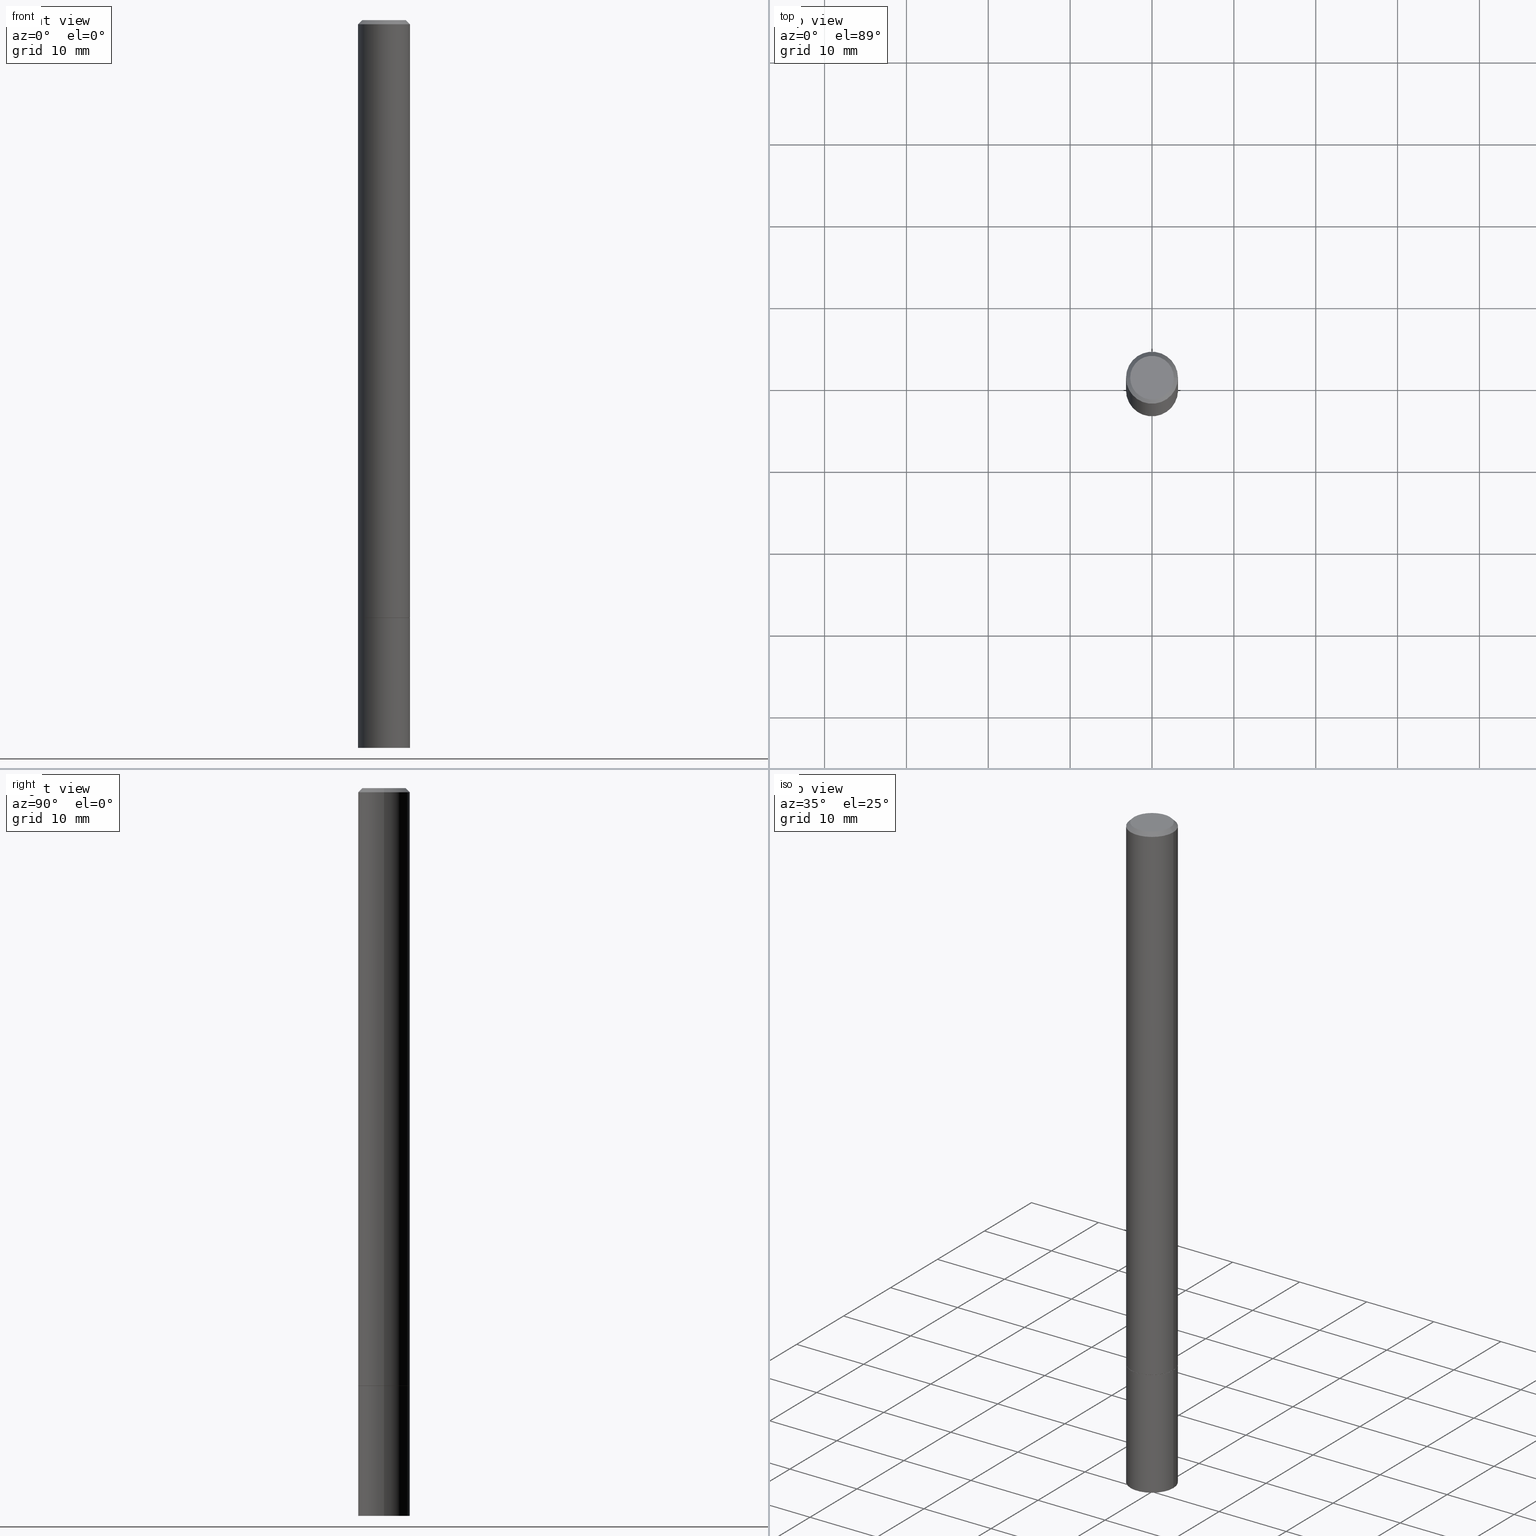
[diagram: canonical four-view strip — front | top / right | iso, engineering-drawing reading convention]
A machine part, canonical four-view strip (front | top / right | iso — engineering-drawing reading convention). The complete STEP part file that produces these views, byte-faithful:
ISO-10303-21;
HEADER;
FILE_DESCRIPTION (( 'STEP AP203' ),
    '1' );
FILE_NAME ('32262.STEP',
    '2024-02-27T14:50:38',
    ( '' ),
    ( '' ),
    'SwSTEP 2.0',
    'SolidWorks 2023',
    '' );
FILE_SCHEMA (( 'CONFIG_CONTROL_DESIGN' ));
ENDSEC;

DATA;
#1 = DATE_AND_TIME ( #25, #88 ) ;
#2 = CARTESIAN_POINT ( 'NONE',  ( 7.030722817782266595E-29, -1.003800884917404153E-14, -2.874999999999999112 ) ) ;
#3 = CARTESIAN_POINT ( 'NONE',  ( 4.890937612370285420E-31, -6.982962677686308865E-17, -0.02000000000000005246 ) ) ;
#4 = VECTOR ( 'NONE', #281, 39.37007874015748143 ) ;
#5 = CC_DESIGN_PERSON_AND_ORGANIZATION_ASSIGNMENT ( #311, #366, ( #341 ) ) ;
#6 = APPROVAL_ROLE ( '' ) ;
#7 = EDGE_LOOP ( 'NONE', ( #133, #213 ) ) ;
#8 = CARTESIAN_POINT ( 'NONE',  ( 0.1250000000000000278, -8.728703347107836346E-16, 6.095220969744921142E-30 ) ) ;
#9 = CARTESIAN_POINT ( 'NONE',  ( 7.030722817782266595E-29, -1.003800884917404153E-14, -2.874999999999999112 ) ) ;
#10 = DIRECTION ( 'NONE',  ( 1.000000000000000000, -6.982962677686269077E-15, 0.000000000000000000 ) ) ;
#11 = SECURITY_CLASSIFICATION_LEVEL ( 'unclassified' ) ;
#12 = VERTEX_POINT ( 'NONE', #41 ) ;
#13 = CC_DESIGN_SECURITY_CLASSIFICATION ( #238, ( #225 ) ) ;
#14 = VERTEX_POINT ( 'NONE', #352 ) ;
#15 = EDGE_CURVE ( 'NONE', #198, #289, #214, .T. ) ;
#16 = DIRECTION ( 'NONE',  ( -2.445468806185136877E-29, 3.491481338843145188E-15, 1.000000000000000000 ) ) ;
#17 = ORIENTED_EDGE ( 'NONE', *, *, #183, .T. ) ;
#18 = DIRECTION ( 'NONE',  ( 2.438088387897960049E-29, -3.491481338843145188E-15, -1.000000000000000000 ) ) ;
#19 = CC_DESIGN_APPROVAL ( #268, ( #140 ) ) ;
#20 = CARTESIAN_POINT ( 'NONE',  ( 7.030722817782267716E-29, -1.003800884917404311E-14, -2.875000000000000000 ) ) ;
#21 = ORIENTED_EDGE ( 'NONE', *, *, #27, .F. ) ;
#22 = CARTESIAN_POINT ( 'NONE',  ( 8.728703347108691274E-16, 0.1249999999999878014, -3.500000000000000444 ) ) ;
#23 = PLANE ( 'NONE',  #83 ) ;
#24 = DIRECTION ( 'NONE',  ( 1.000000000000000000, -6.982962677686261189E-15, 0.000000000000000000 ) ) ;
#25 = CALENDAR_DATE ( 2024, 27, 2 ) ;
#26 = VECTOR ( 'NONE', #73, 39.37007874015748143 ) ;
#27 = EDGE_CURVE ( 'NONE', #14, #37, #55, .T. ) ;
#28 = DATE_AND_TIME ( #222, #292 ) ;
#29 = EDGE_CURVE ( 'NONE', #203, #181, #60, .T. ) ;
#30 = VECTOR ( 'NONE', #335, 39.37007874015748854 ) ;
#31 = CIRCLE ( 'NONE', #340, 0.1250000000000000278 ) ;
#32 = DIRECTION ( 'NONE',  ( -2.445468806185136597E-29, 3.491481338843145583E-15, 1.000000000000000000 ) ) ;
#33 = PERSON_AND_ORGANIZATION ( #228, #334 ) ;
#34 = ADVANCED_BREP_SHAPE_REPRESENTATION ( '32262', ( #255, #365, #38 ), #51 ) ;
#35 = APPROVAL_STATUS ( 'not_yet_approved' ) ;
#36 = AXIS2_PLACEMENT_3D ( 'NONE', #98, #349, #322 ) ;
#37 = VERTEX_POINT ( 'NONE', #90 ) ;
#38 = AXIS2_PLACEMENT_3D ( 'NONE', #245, #50, #285 ) ;
#39 = ORIENTED_EDGE ( 'NONE', *, *, #168, .T. ) ;
#40 = DIRECTION ( 'NONE',  ( -2.445468806185136597E-29, 3.491481338843145583E-15, 1.000000000000000000 ) ) ;
#41 = CARTESIAN_POINT ( 'NONE',  ( 0.1250000000000000278, -1.090738770254598344E-14, -2.874000000000000110 ) ) ;
#42 = ORIENTED_EDGE ( 'NONE', *, *, #318, .T. ) ;
#43 = EDGE_CURVE ( 'NONE', #125, #126, #196, .T. ) ;
#44 = LINE ( 'NONE', #165, #162 ) ;
#45 = LOCAL_TIME ( 9, 50, 38.00000000000000000, #342 ) ;
#46 = ORIENTED_EDGE ( 'NONE', *, *, #318, .F. ) ;
#47 = CARTESIAN_POINT ( 'NONE',  ( 7.030722817782266595E-29, -1.003800884917404153E-14, -2.874999999999999112 ) ) ;
#48 = DIRECTION ( 'NONE',  ( -2.445468806185136597E-29, 3.491481338843145583E-15, 1.000000000000000000 ) ) ;
#49 = ORIENTED_EDGE ( 'NONE', *, *, #239, .F. ) ;
#50 = DIRECTION ( 'NONE',  ( 0.000000000000000000, 0.000000000000000000, 1.000000000000000000 ) ) ;
#51 =( GEOMETRIC_REPRESENTATION_CONTEXT ( 3 ) GLOBAL_UNCERTAINTY_ASSIGNED_CONTEXT ( ( #80 ) ) GLOBAL_UNIT_ASSIGNED_CONTEXT ( ( #347, #344, #286 ) ) REPRESENTATION_CONTEXT ( 'NONE', 'WORKASPACE' ) );
#52 = LINE ( 'NONE', #220, #30 ) ;
#53 = DIRECTION ( 'NONE',  ( 1.000000000000000000, -6.982962677686261189E-15, 0.000000000000000000 ) ) ;
#54 = APPROVAL ( #226, 'UNSPECIFIED' ) ;
#55 = CIRCLE ( 'NONE', #139, 0.1249999999999996947 ) ;
#56 = CONICAL_SURFACE ( 'NONE', #351, 0.1249999999999996947, 0.7853981633974479459 ) ;
#57 = CARTESIAN_POINT ( 'NONE',  ( -0.1249999999999998612, 8.881784197001242463E-16, -6.148668862818625221E-30 ) ) ;
#58 = PERSON_AND_ORGANIZATION ( #228, #334 ) ;
#59 = EDGE_CURVE ( 'NONE', #12, #37, #270, .T. ) ;
#60 = CIRCLE ( 'NONE', #263, 0.1250000000000000278 ) ;
#61 = CARTESIAN_POINT ( 'NONE',  ( 8.559140821647976968E-29, -1.222018468595100934E-14, -3.500000000000000000 ) ) ;
#62 = EDGE_LOOP ( 'NONE', ( #154, #241, #287, #357 ) ) ;
#63 = FACE_OUTER_BOUND ( 'NONE', #325, .T. ) ;
#64 = CC_DESIGN_DATE_AND_TIME_ASSIGNMENT ( #202, #175, ( #238 ) ) ;
#65 = PLANE ( 'NONE',  #290 ) ;
#66 = VECTOR ( 'NONE', #95, 39.37007874015748143 ) ;
#67 = CYLINDRICAL_SURFACE ( 'NONE', #256, 0.1250000000000000278 ) ;
#68 = DIRECTION ( 'NONE',  ( 1.000000000000000000, -6.982962677686266711E-15, 0.000000000000000000 ) ) ;
#69 = ORIENTED_EDGE ( 'NONE', *, *, #163, .F. ) ;
#70 = PLANE ( 'NONE',  #350 ) ;
#71 = ADVANCED_FACE ( 'NONE', ( #179 ), #65, .F. ) ;
#72 = DIMENSIONAL_EXPONENTS ( 1.000000000000000000, 0.000000000000000000, 0.000000000000000000, 0.000000000000000000, 0.000000000000000000, 0.000000000000000000, 0.000000000000000000 ) ;
#73 = DIRECTION ( 'NONE',  ( 0.7071067811865472397, -7.319954787623254468E-15, -0.7071067811865477948 ) ) ;
#74 = DIRECTION ( 'NONE',  ( 2.438088387897960049E-29, -3.491481338843145188E-15, -1.000000000000000000 ) ) ;
#75 = CARTESIAN_POINT ( 'NONE',  ( 0.000000000000000000, 0.000000000000000000, 0.000000000000000000 ) ) ;
#76 = CARTESIAN_POINT ( 'NONE',  ( 8.559140821647976968E-29, -1.222018468595100934E-14, -3.500000000000000000 ) ) ;
#77 = DATE_AND_TIME ( #233, #192 ) ;
#78 = CC_DESIGN_DATE_AND_TIME_ASSIGNMENT ( #1, #142, ( #140 ) ) ;
#79 = COORDINATED_UNIVERSAL_TIME_OFFSET ( 5, 0, .BEHIND. ) ;
#80 = UNCERTAINTY_MEASURE_WITH_UNIT (LENGTH_MEASURE( 1.000000000000000082E-05 ), #347, 'distance_accuracy_value', 'NONE');
#81 = CALENDAR_DATE ( 2024, 27, 2 ) ;
#82 = AXIS2_PLACEMENT_3D ( 'NONE', #9, #177, #205 ) ;
#83 = AXIS2_PLACEMENT_3D ( 'NONE', #101, #74, #160 ) ;
#84 = DIRECTION ( 'NONE',  ( -1.000000000000000000, 6.982962677686266711E-15, 0.000000000000000000 ) ) ;
#85 = CARTESIAN_POINT ( 'NONE',  ( 4.890937612370285420E-31, -6.982962677686308865E-17, -0.02000000000000005246 ) ) ;
#86 = ORIENTED_EDGE ( 'NONE', *, *, #309, .T. ) ;
#87 = VECTOR ( 'NONE', #301, 39.37007874015748854 ) ;
#88 = LOCAL_TIME ( 9, 50, 38.00000000000000000, #79 ) ;
#89 = APPROVAL_DATE_TIME ( #77, #102 ) ;
#90 = CARTESIAN_POINT ( 'NONE',  ( 0.1249999999999996947, -9.273918764983023769E-16, -0.02000000000000005246 ) ) ;
#91 = ADVANCED_FACE ( 'NONE', ( #63 ), #173, .F. ) ;
#92 = CARTESIAN_POINT ( 'NONE',  ( 7.030722817782267716E-29, -1.003800884917404311E-14, -2.875000000000000000 ) ) ;
#93 = DIRECTION ( 'NONE',  ( -2.445468806185136597E-29, 3.491481338843145583E-15, 1.000000000000000000 ) ) ;
#94 = EDGE_LOOP ( 'NONE', ( #153, #182, #39, #273 ) ) ;
#95 = DIRECTION ( 'NONE',  ( -2.445468806185136877E-29, 3.491481338843145188E-15, 1.000000000000000000 ) ) ;
#96 = AXIS2_PLACEMENT_3D ( 'NONE', #156, #272, #324 ) ;
#97 = AXIS2_PLACEMENT_3D ( 'NONE', #85, #32, #259 ) ;
#98 = CARTESIAN_POINT ( 'NONE',  ( 7.030722817782266595E-29, -1.003800884917404153E-14, -2.874999999999999112 ) ) ;
#99 = DIRECTION ( 'NONE',  ( -2.445468806185136597E-29, 3.491481338843145583E-15, 1.000000000000000000 ) ) ;
#100 = EDGE_LOOP ( 'NONE', ( #234, #86, #200, #49 ) ) ;
#101 = CARTESIAN_POINT ( 'NONE',  ( 7.332110811570558550E-16, 0.1049999999999997047, -3.900823592740815069E-16 ) ) ;
#102 = APPROVAL ( #35, 'UNSPECIFIED' ) ;
#103 = CARTESIAN_POINT ( 'NONE',  ( -0.1049999999999997047, 7.681258945454869124E-16, -4.695363739110977184E-17 ) ) ;
#104 = AXIS2_PLACEMENT_3D ( 'NONE', #47, #189, #127 ) ;
#105 = CYLINDRICAL_SURFACE ( 'NONE', #96, 0.1250000000000000278 ) ;
#106 = ADVANCED_FACE ( 'NONE', ( #319 ), #67, .T. ) ;
#107 = CARTESIAN_POINT ( 'NONE',  ( 0.1240000000000000269, -1.090389622120713885E-14, -2.874999999999999112 ) ) ;
#108 = AXIS2_PLACEMENT_3D ( 'NONE', #76, #193, #243 ) ;
#109 = COORDINATED_UNIVERSAL_TIME_OFFSET ( 5, 0, .BEHIND. ) ;
#110 = PERSON_AND_ORGANIZATION ( #228, #334 ) ;
#111 = PRODUCT_RELATED_PRODUCT_CATEGORY ( 'detail', '', ( #341 ) ) ;
#112 = PRODUCT_DEFINITION_SHAPE ( 'NONE', 'NONE',  #140 ) ;
#113 = AXIS2_PLACEMENT_3D ( 'NONE', #327, #48, #158 ) ;
#114 = PERSON_AND_ORGANIZATION ( #228, #334 ) ;
#115 = CIRCLE ( 'NONE', #339, 0.1240000000000000269 ) ;
#116 =( LENGTH_UNIT ( ) NAMED_UNIT ( * ) SI_UNIT ( $, .METRE. ) );
#117 = COORDINATED_UNIVERSAL_TIME_OFFSET ( 5, 0, .BEHIND. ) ;
#118 = CARTESIAN_POINT ( 'NONE',  ( 1.148236555768741665E-45, -1.639377487418492057E-31, -4.695363739110452099E-17 ) ) ;
#119 = DIRECTION ( 'NONE',  ( 1.000000000000000000, -6.982962677686265922E-15, 4.874400871621252228E-29 ) ) ;
#120 = ADVANCED_FACE ( 'NONE', ( #276 ), #212, .T. ) ;
#121 = EDGE_LOOP ( 'NONE', ( #46, #130, #209, #206 ) ) ;
#122 = AXIS2_PLACEMENT_3D ( 'NONE', #118, #152, #262 ) ;
#123 = AXIS2_PLACEMENT_3D ( 'NONE', #61, #235, #312 ) ;
#124 = ORIENTED_EDGE ( 'NONE', *, *, #59, .T. ) ;
#125 = VERTEX_POINT ( 'NONE', #216 ) ;
#126 = VERTEX_POINT ( 'NONE', #107 ) ;
#127 = DIRECTION ( 'NONE',  ( 1.000000000000000000, -6.982962677686269077E-15, 0.000000000000000000 ) ) ;
#128 = DIRECTION ( 'NONE',  ( -2.445468806185136597E-29, 3.491481338843145583E-15, 1.000000000000000000 ) ) ;
#129 = EDGE_CURVE ( 'NONE', #125, #217, #240, .T. ) ;
#130 = ORIENTED_EDGE ( 'NONE', *, *, #15, .F. ) ;
#131 = CARTESIAN_POINT ( 'NONE',  ( 0.1250000000000000278, -1.091087918388482645E-14, -2.875000000000000000 ) ) ;
#132 = CONICAL_SURFACE ( 'NONE', #113, 0.1240000000000000269, 0.7853981633978239785 ) ;
#133 = ORIENTED_EDGE ( 'NONE', *, *, #176, .F. ) ;
#134 = DIRECTION ( 'NONE',  ( -2.445468806185136597E-29, 3.491481338843145583E-15, 1.000000000000000000 ) ) ;
#135 = EDGE_LOOP ( 'NONE', ( #188, #210, #157, #345 ) ) ;
#136 = DIRECTION ( 'NONE',  ( -2.445468806185136597E-29, 3.491481338843145583E-15, 1.000000000000000000 ) ) ;
#137 = ADVANCED_FACE ( 'NONE', ( #333 ), #105, .T. ) ;
#138 = DIRECTION ( 'NONE',  ( 1.000000000000000000, -6.982962677686266711E-15, 4.876176775795935793E-29 ) ) ;
#139 = AXIS2_PLACEMENT_3D ( 'NONE', #3, #99, #68 ) ;
#140 = PRODUCT_DEFINITION ( 'UNKNOWN', '', #225, #331 ) ;
#141 = DIRECTION ( 'NONE',  ( 2.445468806185136597E-29, -3.491481338843145583E-15, -1.000000000000000000 ) ) ;
#142 = DATE_TIME_ROLE ( 'creation_date' ) ;
#143 = APPROVAL_PERSON_ORGANIZATION ( #288, #102, #6 ) ;
#144 = DIRECTION ( 'NONE',  ( -2.445468806185136597E-29, 3.491481338843145583E-15, 1.000000000000000000 ) ) ;
#145 = ADVANCED_FACE ( 'NONE', ( #251 ), #70, .T. ) ;
#146 = PERSON_AND_ORGANIZATION_ROLE ( 'classification_officer' ) ;
#147 = ORIENTED_EDGE ( 'NONE', *, *, #362, .F. ) ;
#148 = DIRECTION ( 'NONE',  ( 2.438088387897960049E-29, -3.491481338843145188E-15, -1.000000000000000000 ) ) ;
#149 = CYLINDRICAL_SURFACE ( 'NONE', #215, 0.1249999999999998612 ) ;
#150 = ORIENTED_EDGE ( 'NONE', *, *, #43, .F. ) ;
#151 = PERSON_AND_ORGANIZATION_ROLE ( 'creator' ) ;
#152 = DIRECTION ( 'NONE',  ( -2.445468806185136597E-29, 3.491481338843145583E-15, 1.000000000000000000 ) ) ;
#153 = ORIENTED_EDGE ( 'NONE', *, *, #129, .F. ) ;
#154 = ORIENTED_EDGE ( 'NONE', *, *, #309, .F. ) ;
#155 = VERTEX_POINT ( 'NONE', #330 ) ;
#156 = CARTESIAN_POINT ( 'NONE',  ( 0.000000000000000000, 0.000000000000000000, 0.000000000000000000 ) ) ;
#157 = ORIENTED_EDGE ( 'NONE', *, *, #183, .F. ) ;
#158 = DIRECTION ( 'NONE',  ( 1.000000000000000000, -6.982962677686269077E-15, 0.000000000000000000 ) ) ;
#159 = ORIENTED_EDGE ( 'NONE', *, *, #244, .F. ) ;
#160 = DIRECTION ( 'NONE',  ( -1.000000000000000000, 6.982962677686265922E-15, -4.876176775795935793E-29 ) ) ;
#161 = AXIS2_PLACEMENT_3D ( 'NONE', #75, #128, #138 ) ;
#162 = VECTOR ( 'NONE', #211, 39.37007874015748143 ) ;
#163 = EDGE_CURVE ( 'NONE', #198, #14, #360, .T. ) ;
#164 = ORIENTED_EDGE ( 'NONE', *, *, #59, .F. ) ;
#165 = CARTESIAN_POINT ( 'NONE',  ( -0.1250000000000000278, 8.881784197001254296E-16, -6.148668862818634329E-30 ) ) ;
#166 = DIRECTION ( 'NONE',  ( 1.000000000000000000, -6.982962677686267499E-15, 4.876176775795935793E-29 ) ) ;
#167 = PERSON_AND_ORGANIZATION_ROLE ( 'creator' ) ;
#168 = EDGE_CURVE ( 'NONE', #126, #12, #52, .T. ) ;
#169 = CIRCLE ( 'NONE', #97, 0.1249999999999996947 ) ;
#170 = APPROVAL_ROLE ( '' ) ;
#171 = DIRECTION ( 'NONE',  ( -2.445468806185136597E-29, 3.491481338843145583E-15, 1.000000000000000000 ) ) ;
#172 = CC_DESIGN_APPROVAL ( #102, ( #238 ) ) ;
#173 = PLANE ( 'NONE',  #82 ) ;
#174 = DIRECTION ( 'NONE',  ( 1.000000000000000000, -6.982962677686266711E-15, 4.876176775795935793E-29 ) ) ;
#175 = DATE_TIME_ROLE ( 'classification_date' ) ;
#176 = EDGE_CURVE ( 'NONE', #236, #155, #253, .T. ) ;
#177 = DIRECTION ( 'NONE',  ( -2.438088387897960049E-29, 3.491481338843145188E-15, 1.000000000000000000 ) ) ;
#178 = CIRCLE ( 'NONE', #264, 0.1049999999999997047 ) ;
#179 = FACE_OUTER_BOUND ( 'NONE', #237, .T. ) ;
#180 = EDGE_LOOP ( 'NONE', ( #353, #291 ) ) ;
#181 = VERTEX_POINT ( 'NONE', #307 ) ;
#182 = ORIENTED_EDGE ( 'NONE', *, *, #43, .T. ) ;
#183 = EDGE_CURVE ( 'NONE', #12, #217, #313, .T. ) ;
#184 = FACE_OUTER_BOUND ( 'NONE', #94, .T. ) ;
#185 = ORIENTED_EDGE ( 'NONE', *, *, #227, .T. ) ;
#186 = ADVANCED_FACE ( 'NONE', ( #278 ), #23, .F. ) ;
#187 = CARTESIAN_POINT ( 'NONE',  ( 4.890937612370285420E-31, -6.982962677686308865E-17, -0.02000000000000005246 ) ) ;
#188 = ORIENTED_EDGE ( 'NONE', *, *, #244, .T. ) ;
#189 = DIRECTION ( 'NONE',  ( -2.445468806185136597E-29, 3.491481338843145583E-15, 1.000000000000000000 ) ) ;
#190 = DIRECTION ( 'NONE',  ( -1.000000000000000000, 6.982962677686265922E-15, -4.876176775795935793E-29 ) ) ;
#191 = VECTOR ( 'NONE', #306, 39.37007874015748143 ) ;
#192 = LOCAL_TIME ( 9, 50, 38.00000000000000000, #117 ) ;
#193 = DIRECTION ( 'NONE',  ( -2.445468806185136597E-29, 3.491481338843145583E-15, 1.000000000000000000 ) ) ;
#194 = DATE_AND_TIME ( #81, #45 ) ;
#195 = CC_DESIGN_PERSON_AND_ORGANIZATION_ASSIGNMENT ( #265, #204, ( #225 ) ) ;
#196 = CIRCLE ( 'NONE', #36, 0.1240000000000000269 ) ;
#197 = CARTESIAN_POINT ( 'NONE',  ( 0.000000000000000000, 0.000000000000000000, 0.000000000000000000 ) ) ;
#198 = VERTEX_POINT ( 'NONE', #103 ) ;
#199 = FACE_OUTER_BOUND ( 'NONE', #135, .T. ) ;
#200 = ORIENTED_EDGE ( 'NONE', *, *, #29, .F. ) ;
#201 = ADVANCED_FACE ( 'NONE', ( #184 ), #132, .T. ) ;
#202 = DATE_AND_TIME ( #231, #305 ) ;
#203 = VERTEX_POINT ( 'NONE', #131 ) ;
#204 = PERSON_AND_ORGANIZATION_ROLE ( 'design_supplier' ) ;
#205 = DIRECTION ( 'NONE',  ( 1.000000000000000000, -6.982962677686265922E-15, 4.876176775795935793E-29 ) ) ;
#206 = ORIENTED_EDGE ( 'NONE', *, *, #27, .T. ) ;
#207 = DIRECTION ( 'NONE',  ( -2.445468806185136597E-29, 3.491481338843145583E-15, 1.000000000000000000 ) ) ;
#208 = AXIS2_PLACEMENT_3D ( 'NONE', #221, #141, #84 ) ;
#209 = ORIENTED_EDGE ( 'NONE', *, *, #163, .T. ) ;
#210 = ORIENTED_EDGE ( 'NONE', *, *, #129, .T. ) ;
#211 = DIRECTION ( 'NONE',  ( -2.445468806185136877E-29, 3.491481338843145188E-15, 1.000000000000000000 ) ) ;
#212 = CYLINDRICAL_SURFACE ( 'NONE', #161, 0.1249999999999998612 ) ;
#213 = ORIENTED_EDGE ( 'NONE', *, *, #337, .F. ) ;
#214 = CIRCLE ( 'NONE', #122, 0.1049999999999997047 ) ;
#215 = AXIS2_PLACEMENT_3D ( 'NONE', #197, #171, #174 ) ;
#216 = CARTESIAN_POINT ( 'NONE',  ( -0.1240000000000000269, -9.151637402483297269E-15, -2.874999999999999112 ) ) ;
#217 = VERTEX_POINT ( 'NONE', #247 ) ;
#218 = ADVANCED_FACE ( 'NONE', ( #219 ), #56, .T. ) ;
#219 = FACE_OUTER_BOUND ( 'NONE', #271, .T. ) ;
#220 = CARTESIAN_POINT ( 'NONE',  ( 0.1240000000000000269, -1.090389622120713885E-14, -2.874999999999999112 ) ) ;
#221 = CARTESIAN_POINT ( 'NONE',  ( 4.890937612370285420E-31, -6.982962677686308865E-17, -0.02000000000000005246 ) ) ;
#222 = CALENDAR_DATE ( 2024, 27, 2 ) ;
#223 = EDGE_CURVE ( 'NONE', #181, #203, #280, .T. ) ;
#224 = APPLICATION_PROTOCOL_DEFINITION ( 'international standard', 'config_control_design', 1994, #303 ) ;
#225 = PRODUCT_DEFINITION_FORMATION_WITH_SPECIFIED_SOURCE ( 'ANY', '', #341, .NOT_KNOWN. ) ;
#226 = APPROVAL_STATUS ( 'not_yet_approved' ) ;
#227 = EDGE_CURVE ( 'NONE', #217, #14, #310, .T. ) ;
#228 = PERSON ( 'UNSPECIFIED', 'UNSPECIFIED', 'UNSPECIFIED', ('UNSPECIFIED'), ('UNSPECIFIED'), ('UNSPECIFIED') ) ;
#229 = APPROVAL_ROLE ( '' ) ;
#230 = CARTESIAN_POINT ( 'NONE',  ( 0.1049999999999997047, -8.238720831321555936E-16, -4.695363739109907908E-17 ) ) ;
#231 = CALENDAR_DATE ( 2024, 27, 2 ) ;
#232 = DIRECTION ( 'NONE',  ( 1.000000000000000000, -6.982962677686261189E-15, 0.000000000000000000 ) ) ;
#233 = CALENDAR_DATE ( 2024, 27, 2 ) ;
#234 = ORIENTED_EDGE ( 'NONE', *, *, #176, .T. ) ;
#235 = DIRECTION ( 'NONE',  ( -2.445468806185136597E-29, 3.491481338843145583E-15, 1.000000000000000000 ) ) ;
#236 = VERTEX_POINT ( 'NONE', #266 ) ;
#237 = EDGE_LOOP ( 'NONE', ( #328, #296 ) ) ;
#238 = SECURITY_CLASSIFICATION ( '', '', #11 ) ;
#239 = EDGE_CURVE ( 'NONE', #236, #203, #293, .T. ) ;
#240 = LINE ( 'NONE', #299, #87 ) ;
#241 = ORIENTED_EDGE ( 'NONE', *, *, #337, .T. ) ;
#242 = SHAPE_DEFINITION_REPRESENTATION ( #112, #34 ) ;
#243 = DIRECTION ( 'NONE',  ( 1.000000000000000000, -6.982962677686261189E-15, 0.000000000000000000 ) ) ;
#244 = EDGE_CURVE ( 'NONE', #126, #125, #115, .T. ) ;
#245 = CARTESIAN_POINT ( 'NONE',  ( 0.000000000000000000, 0.000000000000000000, 0.000000000000000000 ) ) ;
#246 = CIRCLE ( 'NONE', #123, 0.1250000000000000278 ) ;
#247 = CARTESIAN_POINT ( 'NONE',  ( -0.1250000000000000278, -4.163995077605900155E-15, -2.874000000000000110 ) ) ;
#248 = EDGE_LOOP ( 'NONE', ( #17, #185, #304, #164 ) ) ;
#249 = CARTESIAN_POINT ( 'NONE',  ( 7.028277348976082113E-29, -1.003451736783520168E-14, -2.874000000000000110 ) ) ;
#250 = CARTESIAN_POINT ( 'NONE',  ( -0.1249999999999996947, 8.030407079339180685E-16, -0.02000000000000005246 ) ) ;
#251 = FACE_OUTER_BOUND ( 'NONE', #7, .T. ) ;
#252 = EDGE_CURVE ( 'NONE', #37, #14, #169, .T. ) ;
#253 = CIRCLE ( 'NONE', #108, 0.1250000000000000278 ) ;
#254 = APPLICATION_PROTOCOL_DEFINITION ( 'international standard', 'config_control_design', 1994, #283 ) ;
#255 = MANIFOLD_SOLID_BREP ( 'Body-Move/Copy2[1]', #358 ) ;
#256 = AXIS2_PLACEMENT_3D ( 'NONE', #294, #40, #166 ) ;
#257 = APPROVAL_PERSON_ORGANIZATION ( #58, #268, #170 ) ;
#258 = PERSON_AND_ORGANIZATION ( #228, #334 ) ;
#259 = DIRECTION ( 'NONE',  ( 1.000000000000000000, -6.982962677686266711E-15, 0.000000000000000000 ) ) ;
#260 = FACE_OUTER_BOUND ( 'NONE', #248, .T. ) ;
#261 = CC_DESIGN_PERSON_AND_ORGANIZATION_ASSIGNMENT ( #258, #167, ( #140 ) ) ;
#262 = DIRECTION ( 'NONE',  ( 1.000000000000000000, -6.982962677686265922E-15, 4.874400871621252228E-29 ) ) ;
#263 = AXIS2_PLACEMENT_3D ( 'NONE', #92, #93, #232 ) ;
#264 = AXIS2_PLACEMENT_3D ( 'NONE', #284, #144, #119 ) ;
#265 = PERSON_AND_ORGANIZATION ( #228, #334 ) ;
#266 = CARTESIAN_POINT ( 'NONE',  ( 0.1250000000000000278, -1.309305502066179110E-14, -3.500000000000000000 ) ) ;
#267 = COORDINATED_UNIVERSAL_TIME_OFFSET ( 5, 0, .BEHIND. ) ;
#268 = APPROVAL ( #338, 'UNSPECIFIED' ) ;
#269 = VECTOR ( 'NONE', #16, 39.37007874015748143 ) ;
#270 = LINE ( 'NONE', #317, #269 ) ;
#271 = EDGE_LOOP ( 'NONE', ( #147, #42, #323, #69 ) ) ;
#272 = DIRECTION ( 'NONE',  ( -2.445468806185136597E-29, 3.491481338843145583E-15, 1.000000000000000000 ) ) ;
#273 = ORIENTED_EDGE ( 'NONE', *, *, #326, .F. ) ;
#274 = CC_DESIGN_APPROVAL ( #54, ( #225 ) ) ;
#275 = DIRECTION ( 'NONE',  ( -1.000000000000000000, 6.982962677686266711E-15, 0.000000000000000000 ) ) ;
#276 = FACE_OUTER_BOUND ( 'NONE', #321, .T. ) ;
#277 = CC_DESIGN_PERSON_AND_ORGANIZATION_ASSIGNMENT ( #110, #151, ( #225 ) ) ;
#278 = FACE_OUTER_BOUND ( 'NONE', #180, .T. ) ;
#279 = CLOSED_SHELL ( 'NONE', ( #295, #343, #218, #332, #120, #201, #91, #186 ) ) ;
#280 = CIRCLE ( 'NONE', #320, 0.1250000000000000278 ) ;
#281 = DIRECTION ( 'NONE',  ( -2.445468806185136877E-29, 3.491481338843145188E-15, 1.000000000000000000 ) ) ;
#282 = FACE_OUTER_BOUND ( 'NONE', #121, .T. ) ;
#283 = APPLICATION_CONTEXT ( 'configuration controlled 3d designs of mechanical parts and assemblies' ) ;
#284 = CARTESIAN_POINT ( 'NONE',  ( 1.148236555768741665E-45, -1.639377487418492057E-31, -4.695363739110452099E-17 ) ) ;
#285 = DIRECTION ( 'NONE',  ( 1.000000000000000000, 0.000000000000000000, 0.000000000000000000 ) ) ;
#286 =( NAMED_UNIT ( * ) SI_UNIT ( $, .STERADIAN. ) SOLID_ANGLE_UNIT ( ) );
#287 = ORIENTED_EDGE ( 'NONE', *, *, #239, .T. ) ;
#288 = PERSON_AND_ORGANIZATION ( #228, #334 ) ;
#289 = VERTEX_POINT ( 'NONE', #230 ) ;
#290 = AXIS2_PLACEMENT_3D ( 'NONE', #346, #148, #316 ) ;
#291 = ORIENTED_EDGE ( 'NONE', *, *, #362, .T. ) ;
#292 = LOCAL_TIME ( 9, 50, 38.00000000000000000, #109 ) ;
#293 = LINE ( 'NONE', #8, #66 ) ;
#294 = CARTESIAN_POINT ( 'NONE',  ( 0.000000000000000000, 0.000000000000000000, 0.000000000000000000 ) ) ;
#295 = ADVANCED_FACE ( 'NONE', ( #199 ), #298, .T. ) ;
#296 = ORIENTED_EDGE ( 'NONE', *, *, #223, .T. ) ;
#297 = AXIS2_PLACEMENT_3D ( 'NONE', #354, #356, #53 ) ;
#298 = CONICAL_SURFACE ( 'NONE', #104, 0.1240000000000000269, 0.7853981633978239785 ) ;
#299 = CARTESIAN_POINT ( 'NONE',  ( -0.1240000000000000269, -9.156935856831516516E-15, -2.874999999999999112 ) ) ;
#300 = CARTESIAN_POINT ( 'NONE',  ( 0.1249999999999996947, -9.273918764983023769E-16, -0.02000000000000005246 ) ) ;
#301 = DIRECTION ( 'NONE',  ( -0.7071067811868130271, 7.493145998871311837E-15, 0.7071067811862817853 ) ) ;
#302 = DIRECTION ( 'NONE',  ( 2.445468806185136597E-29, -3.491481338843145583E-15, -1.000000000000000000 ) ) ;
#303 = APPLICATION_CONTEXT ( 'configuration controlled 3d designs of mechanical parts and assemblies' ) ;
#304 = ORIENTED_EDGE ( 'NONE', *, *, #252, .F. ) ;
#305 = LOCAL_TIME ( 9, 50, 38.00000000000000000, #267 ) ;
#306 = DIRECTION ( 'NONE',  ( -0.7071067811865472397, 2.468850131082253905E-15, -0.7071067811865477948 ) ) ;
#307 = CARTESIAN_POINT ( 'NONE',  ( -0.1250000000000000278, -1.024091834786239941E-14, -2.875000000000000000 ) ) ;
#308 = MECHANICAL_CONTEXT ( 'NONE', #283, 'mechanical' ) ;
#309 = EDGE_CURVE ( 'NONE', #155, #181, #44, .T. ) ;
#310 = LINE ( 'NONE', #57, #4 ) ;
#311 = PERSON_AND_ORGANIZATION ( #228, #334 ) ;
#312 = DIRECTION ( 'NONE',  ( 1.000000000000000000, -6.982962677686261189E-15, 0.000000000000000000 ) ) ;
#313 = CIRCLE ( 'NONE', #297, 0.1250000000000000278 ) ;
#314 = APPROVAL_PERSON_ORGANIZATION ( #114, #54, #229 ) ;
#315 = ORIENTED_EDGE ( 'NONE', *, *, #227, .F. ) ;
#316 = DIRECTION ( 'NONE',  ( -1.000000000000000000, 6.982962677686265922E-15, -4.876176775795935793E-29 ) ) ;
#317 = CARTESIAN_POINT ( 'NONE',  ( 0.1249999999999998612, -8.728703347107823527E-16, 6.095220969744912735E-30 ) ) ;
#318 = EDGE_CURVE ( 'NONE', #289, #37, #329, .T. ) ;
#319 = FACE_OUTER_BOUND ( 'NONE', #62, .T. ) ;
#320 = AXIS2_PLACEMENT_3D ( 'NONE', #20, #134, #363 ) ;
#321 = EDGE_LOOP ( 'NONE', ( #315, #361, #124, #21 ) ) ;
#322 = DIRECTION ( 'NONE',  ( 1.000000000000000000, -6.982962677686269077E-15, 0.000000000000000000 ) ) ;
#323 = ORIENTED_EDGE ( 'NONE', *, *, #252, .T. ) ;
#324 = DIRECTION ( 'NONE',  ( 1.000000000000000000, -6.982962677686267499E-15, 4.876176775795935793E-29 ) ) ;
#325 = EDGE_LOOP ( 'NONE', ( #159, #150 ) ) ;
#326 = EDGE_CURVE ( 'NONE', #217, #12, #31, .T. ) ;
#327 = CARTESIAN_POINT ( 'NONE',  ( 7.030722817782266595E-29, -1.003800884917404153E-14, -2.874999999999999112 ) ) ;
#328 = ORIENTED_EDGE ( 'NONE', *, *, #29, .T. ) ;
#329 = LINE ( 'NONE', #300, #26 ) ;
#330 = CARTESIAN_POINT ( 'NONE',  ( -0.1250000000000000278, -1.024091834786239941E-14, -3.500000000000000000 ) ) ;
#331 = DESIGN_CONTEXT ( 'detailed design', #303, 'design' ) ;
#332 = ADVANCED_FACE ( 'NONE', ( #282 ), #359, .T. ) ;
#333 = FACE_OUTER_BOUND ( 'NONE', #100, .T. ) ;
#334 = ORGANIZATION ( 'UNSPECIFIED', 'UNSPECIFIED', '' ) ;
#335 = DIRECTION ( 'NONE',  ( 0.7071067811868130271, -2.468850131085038979E-15, 0.7071067811862817853 ) ) ;
#336 = APPROVAL_DATE_TIME ( #28, #268 ) ;
#337 = EDGE_CURVE ( 'NONE', #155, #236, #246, .T. ) ;
#338 = APPROVAL_STATUS ( 'not_yet_approved' ) ;
#339 = AXIS2_PLACEMENT_3D ( 'NONE', #2, #207, #10 ) ;
#340 = AXIS2_PLACEMENT_3D ( 'NONE', #249, #136, #24 ) ;
#341 = PRODUCT ( '32262', '32262', '', ( #308 ) ) ;
#342 = COORDINATED_UNIVERSAL_TIME_OFFSET ( 5, 0, .BEHIND. ) ;
#343 = ADVANCED_FACE ( 'NONE', ( #260 ), #149, .T. ) ;
#344 =( NAMED_UNIT ( * ) PLANE_ANGLE_UNIT ( ) SI_UNIT ( $, .RADIAN. ) );
#345 = ORIENTED_EDGE ( 'NONE', *, *, #168, .F. ) ;
#346 = CARTESIAN_POINT ( 'NONE',  ( 8.728703347108538433E-16, 0.1249999999999899941, -2.875000000000000444 ) ) ;
#347 =( CONVERSION_BASED_UNIT ( 'INCH', #348 ) LENGTH_UNIT ( ) NAMED_UNIT ( #72 ) );
#348 = LENGTH_MEASURE_WITH_UNIT ( LENGTH_MEASURE( 0.02539999999999999897 ), #116 );
#349 = DIRECTION ( 'NONE',  ( -2.445468806185136597E-29, 3.491481338843145583E-15, 1.000000000000000000 ) ) ;
#350 = AXIS2_PLACEMENT_3D ( 'NONE', #22, #18, #190 ) ;
#351 = AXIS2_PLACEMENT_3D ( 'NONE', #187, #302, #275 ) ;
#352 = CARTESIAN_POINT ( 'NONE',  ( -0.1249999999999996947, 8.030407079339180685E-16, -0.02000000000000005246 ) ) ;
#353 = ORIENTED_EDGE ( 'NONE', *, *, #15, .T. ) ;
#354 = CARTESIAN_POINT ( 'NONE',  ( 7.028277348976082113E-29, -1.003451736783520168E-14, -2.874000000000000110 ) ) ;
#355 = CC_DESIGN_PERSON_AND_ORGANIZATION_ASSIGNMENT ( #33, #146, ( #238 ) ) ;
#356 = DIRECTION ( 'NONE',  ( -2.445468806185136597E-29, 3.491481338843145583E-15, 1.000000000000000000 ) ) ;
#357 = ORIENTED_EDGE ( 'NONE', *, *, #223, .F. ) ;
#358 = CLOSED_SHELL ( 'NONE', ( #137, #145, #71, #106 ) ) ;
#359 = CONICAL_SURFACE ( 'NONE', #208, 0.1249999999999996947, 0.7853981633974479459 ) ;
#360 = LINE ( 'NONE', #250, #191 ) ;
#361 = ORIENTED_EDGE ( 'NONE', *, *, #326, .T. ) ;
#362 = EDGE_CURVE ( 'NONE', #289, #198, #178, .T. ) ;
#363 = DIRECTION ( 'NONE',  ( 1.000000000000000000, -6.982962677686261189E-15, 0.000000000000000000 ) ) ;
#364 = APPROVAL_DATE_TIME ( #194, #54 ) ;
#365 = MANIFOLD_SOLID_BREP ( 'Body-Move/Copy2[2]', #279 ) ;
#366 = PERSON_AND_ORGANIZATION_ROLE ( 'design_owner' ) ;
ENDSEC;
END-ISO-10303-21;
